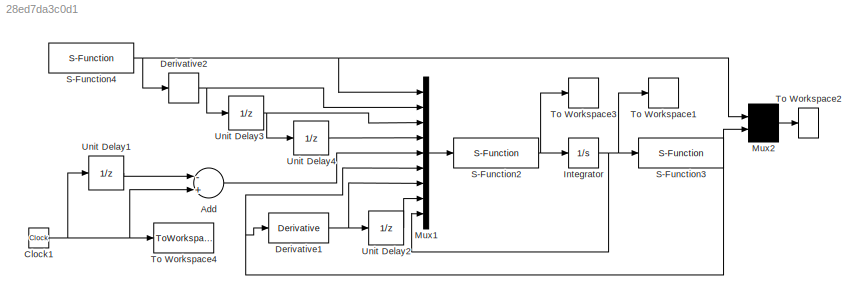
MODEL slx_28ed7da3c0d1
KIND model
CONFIG AbsTol = auto
CONFIG EnableMultiTasking = on
CONFIG FixedStep = 0.01
CONFIG MaxStep = 0.05
CONFIG MinStep = auto
CONFIG RelTol = 1e-3
CONFIG SampleTimeConstraint = Unconstrained
CONFIG Solver = FixedStepAuto
CONFIG SolverName = FixedStepAuto
CONFIG StartTime = 0.0
CONFIG StopTime = RunTime
BLOCK [Sum] Add
  InputSameDT = off
  Inputs = -+
  OutDataTypeStr = Inherit: Inherit via internal rule
  Ports = [2, 1]
  SaturateOnIntegerOverflow = off
BLOCK [Clock] Clock1
BLOCK [Derivative] Derivative1
BLOCK [Derivative] Derivative2
BLOCK [Integrator] Integrator
  Ports = [1, 1]
BLOCK [Mux] Mux1
  DisplayOption = bar
  Inputs = 9
  Ports = [9, 1]
BLOCK [Mux] Mux2
  Inputs = 2
  Ports = [2, 1]
BLOCK [S-Function] S-Function2
  EnableBusSupport = off
  FunctionName = chap5_1ctrl
  Ports = [1, 1]
  SFcnIsStateOwnerBlock = off
  SFunctionDeploymentMode = off
  SFunctionModules = 'chap5_1ctrl'
BLOCK [S-Function] S-Function3
  EnableBusSupport = off
  FunctionName = chap5_1plant
  Ports = [1, 1]
  SFcnIsStateOwnerBlock = off
  SFunctionDeploymentMode = off
  SFunctionModules = 'chap5_1plant'
BLOCK [S-Function] S-Function4
  EnableBusSupport = off
  FunctionName = chap5_1input
  Ports = [0, 1]
  SFcnIsStateOwnerBlock = off
  SFunctionDeploymentMode = off
  SFunctionModules = 'chap5_1nput'
BLOCK [ToWorkspace] To Workspace1
  FixptAsFi = on
  MaxDataPoints = inf
  Ports = [1]
  SampleTime = -1
  Save2DSignal = 3-D array (concatenate along third dimension)
  VariableName = u
BLOCK [ToWorkspace] To Workspace2
  FixptAsFi = on
  MaxDataPoints = inf
  Ports = [1]
  SampleTime = -1
  Save2DSignal = 3-D array (concatenate along third dimension)
  VariableName = y
BLOCK [ToWorkspace] To Workspace3
  FixptAsFi = on
  MaxDataPoints = inf
  Ports = [1]
  SampleTime = -1
  Save2DSignal = 3-D array (concatenate along third dimension)
  VariableName = du
BLOCK [ToWorkspace] To Workspace4
  FixptAsFi = on
  MaxDataPoints = inf
  Ports = [1]
  SampleTime = -1
  Save2DSignal = 3-D array (concatenate along third dimension)
  VariableName = t
BLOCK [UnitDelay] Unit Delay1
  InputProcessing = Elements as channels (sample based)
  SampleTime = -1
BLOCK [UnitDelay] Unit Delay2
  InputProcessing = Elements as channels (sample based)
  SampleTime = -1
BLOCK [UnitDelay] Unit Delay3
  InputProcessing = Elements as channels (sample based)
  SampleTime = -1
BLOCK [UnitDelay] Unit Delay4
  InputProcessing = Elements as channels (sample based)
  SampleTime = -1
LINE Add:1 -> Mux1:5
NET Clock1:1 -> Add:2, To Workspace4:1, Unit Delay1:1
NET Derivative1:1 -> Mux1:7, Unit Delay2:1
NET Derivative2:1 -> Mux1:2, Unit Delay3:1
NET Integrator:1 -> Mux1:9, S-Function3:1, To Workspace1:1
LINE Mux1:1 -> S-Function2:1
LINE Mux2:1 -> To Workspace2:1
NET S-Function2:1 -> Integrator:1, To Workspace3:1
NET S-Function3:1 -> Derivative1:1, Mux1:6, Mux2:2
NET S-Function4:1 -> Derivative2:1, Mux1:1, Mux2:1
LINE Unit Delay1:1 -> Add:1
LINE Unit Delay2:1 -> Mux1:8
NET Unit Delay3:1 -> Mux1:3, Unit Delay4:1
LINE Unit Delay4:1 -> Mux1:4
note: NET lines group one-source signal fan-out (src -> all destinations, sorted); 1:1 wires keep LINE
